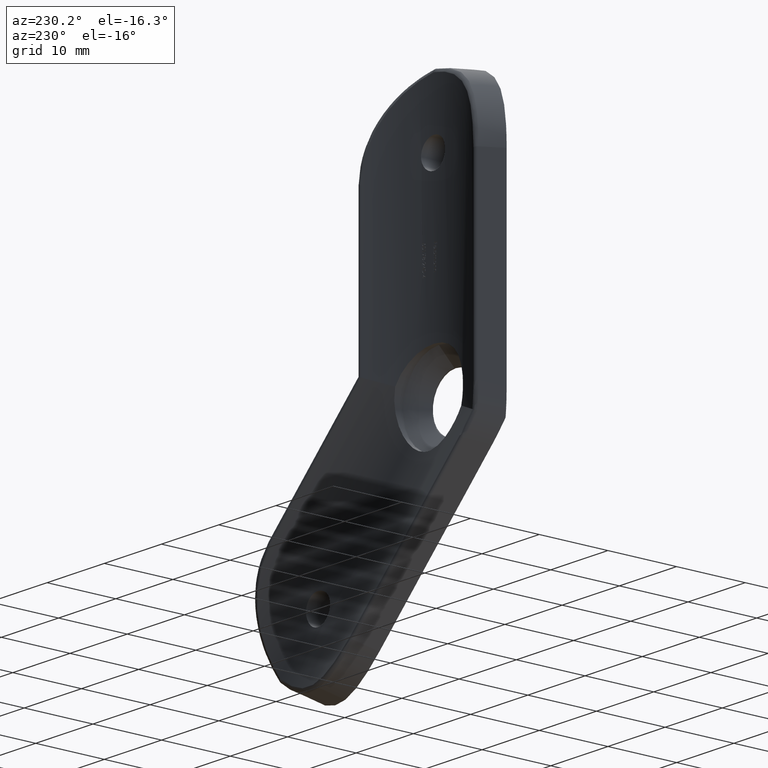
[diagram: clean part render]
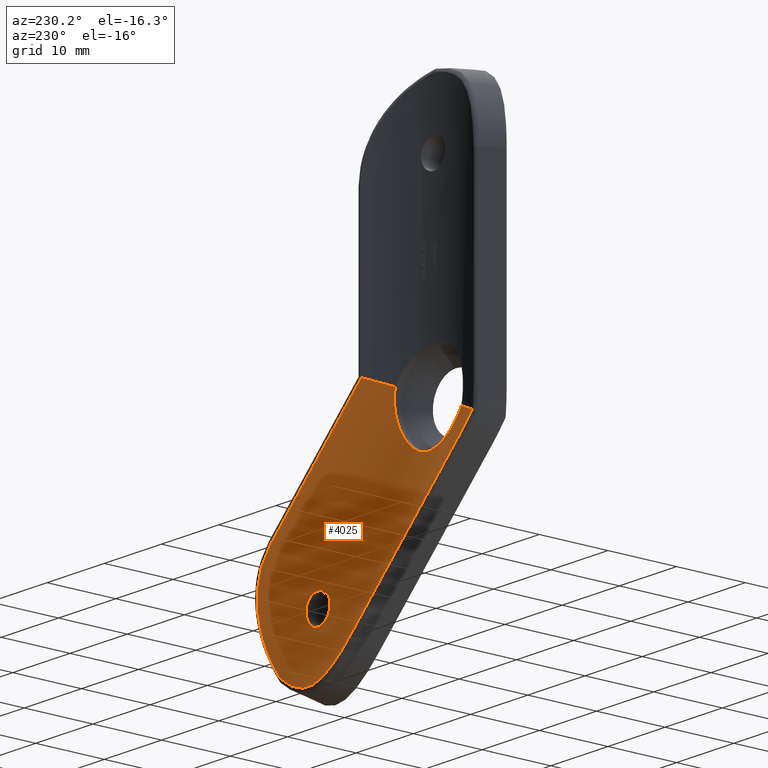
[diagram: same view with one face highlighted and labeled with its STEP entity id]
A machine part, auxiliary view. The second image highlights one B-rep face of the part: STEP entity #4025.
In plain terms, the highlighted cylindrical surface (partial cylindrical patch) has radius 21.2 mm, axis along (0.7071, 0, -0.7071).
Its self-contained STEP definition (entity closure, byte-faithful):
#9 = CARTESIAN_POINT ( 'NONE',  ( 28.56005800712260300, 3.960102950532994500, -23.79633715319551600 ) ) ;
#99 = CARTESIAN_POINT ( 'NONE',  ( 28.93126321833347000, 5.323748329729961700, -17.42108475749254000 ) ) ;
#119 = ORIENTED_EDGE ( 'NONE', *, *, #3359, .T. ) ;
#142 = CARTESIAN_POINT ( 'NONE',  ( 9.786144100064888100, 6.093847186285944200, 4.053553609584331400 ) ) ;
#240 = B_SPLINE_CURVE_WITH_KNOTS ( 'NONE', 3,
 ( #9014, #723, #9056, #10087, #5974, #5132 ),
 .UNSPECIFIED., .F., .F.,
 ( 4, 2, 4 ),
 ( 0.0000000000000000000, 0.001602261014506138100, 0.003204522029012276100 ),
 .UNSPECIFIED. ) ;
#297 = CARTESIAN_POINT ( 'NONE',  ( 25.64942639650512700, 3.742412928025725000, -27.60643563183157700 ) ) ;
#316 = CARTESIAN_POINT ( 'NONE',  ( -6.919848854824600400, 6.093847186285947800, -6.919848854824620900 ) ) ;
#402 = ORIENTED_EDGE ( 'NONE', *, *, #10122, .F. ) ;
#585 = B_SPLINE_CURVE_WITH_KNOTS ( 'NONE', 3,
 ( #1707, #8979, #2764, #1610, #10006, #3802, #11067, #12101, #3847, #6787, #7827, #1567, #3668, #4690 ),
 .UNSPECIFIED., .F., .F.,
 ( 4, 2, 2, 2, 2, 2, 4 ),
 ( 0.01923320216631467900, 0.02015400737586894500, 0.02107481258542321200, 0.02291642300453174100, 0.02475803342364027400, 0.02567883863319454400, 0.02659964384274881100 ),
 .UNSPECIFIED. ) ;
#607 = CARTESIAN_POINT ( 'NONE',  ( 2.482823787176574400, 3.824268621963951900, -5.741407187635871900 ) ) ;
#643 = CARTESIAN_POINT ( 'NONE',  ( -9.330593266185310600, 5.863718080963989700, -3.864858275841037000 ) ) ;
#650 = CARTESIAN_POINT ( 'NONE',  ( 6.045371583085263000, 3.932508588706170800, -1.606517223063910200 ) ) ;
#723 = CARTESIAN_POINT ( 'NONE',  ( -7.798240508542126500, 6.093847186285948700, -6.041457201107101000 ) ) ;
#757 = DIRECTION ( 'NONE',  ( -0.7071067811865465700, 0.0000000000000000000, -0.7071067811865485700 ) ) ;
#842 = CARTESIAN_POINT ( 'NONE',  ( 20.82921879040928600, 3.720052630462676600, -22.14529497371005500 ) ) ;
#879 = CARTESIAN_POINT ( 'NONE',  ( 6.919848854824595100, 6.093847186285940700, 6.919848854824615500 ) ) ;
#887 = CARTESIAN_POINT ( 'NONE',  ( 22.18538891344844500, 3.778334170644270800, -19.60814929815254700 ) ) ;
#1067 = ORIENTED_EDGE ( 'NONE', *, *, #2466, .F. ) ;
#1116 = CARTESIAN_POINT ( 'NONE',  ( 21.20584055181948800, 3.797693234256702200, -18.33064751069091300 ) ) ;
#1158 = CARTESIAN_POINT ( 'NONE',  ( 27.40718924533371100, 5.946516363973421100, -13.97484488292479000 ) ) ;
#1447 = CARTESIAN_POINT ( 'NONE',  ( 25.34752275472686400, 3.767695698261637200, -27.78824150044399500 ) ) ;
#1452 = EDGE_CURVE ( 'NONE', #11507, #10308, #240, .T. ) ;
#1567 = CARTESIAN_POINT ( 'NONE',  ( -5.519190112185397000, 4.563011017158346200, -2.948742050073892800 ) ) ;
#1610 = CARTESIAN_POINT ( 'NONE',  ( -1.209826619579936800, 4.345929449661221100, -6.139349569736468800 ) ) ;
#1619 = CARTESIAN_POINT ( 'NONE',  ( 5.705298535283363400, 3.815193503253131400, -2.564850002938132300 ) ) ;
#1680 = CARTESIAN_POINT ( 'NONE',  ( 12.84563120528007500, 6.064718140661850200, -26.60697257685469500 ) ) ;
#1707 = CARTESIAN_POINT ( 'NONE',  ( -3.320133720101775600E-017, 4.165758996288293000, -6.250000000000000000 ) ) ;
#1718 = CARTESIAN_POINT ( 'NONE',  ( 3.397537549141237600, 3.735693555433960500, -5.270885185374686100 ) ) ;
#1756 = CARTESIAN_POINT ( 'NONE',  ( 18.05264516550072400, 3.745112050597909600, -20.01243038443274700 ) ) ;
#1891 = CARTESIAN_POINT ( 'NONE',  ( 18.86262330225563100, 3.700019973075610500, -18.47289989652777800 ) ) ;
#1945 = CARTESIAN_POINT ( 'NONE',  ( 22.04059381752205800, 3.793765005836880400, -19.22291763320431100 ) ) ;
#2025 = VERTEX_POINT ( 'NONE', #5768 ) ;
#2076 = CARTESIAN_POINT ( 'NONE',  ( 28.39695391812695000, 5.658941227809774200, -15.80475560723312800 ) ) ;
#2086 = CARTESIAN_POINT ( 'NONE',  ( 20.42853285290282600, 3.765771062383713300, -18.06624150268636700 ) ) ;
#2220 = CARTESIAN_POINT ( 'NONE',  ( 29.12530589214574700, 4.333629174913363100, -21.80852082833983400 ) ) ;
#2293 = ORIENTED_EDGE ( 'NONE', *, *, #10522, .T. ) ;
#2322 = CARTESIAN_POINT ( 'NONE',  ( 26.23473295296525600, 3.708645272120688400, -27.21953555139468900 ) ) ;
#2332 = CARTESIAN_POINT ( 'NONE',  ( 19.59974415622175300, 3.779429613315272300, -22.19686083977653000 ) ) ;
#2347 = DIRECTION ( 'NONE',  ( -0.7071067811865486800, -0.0000000000000000000, 0.7071067811865464600 ) ) ;
#2457 = VERTEX_POINT ( 'NONE', #11906 ) ;
#2466 = EDGE_CURVE ( 'NONE', #4010, #10308, #7544, .T. ) ;
#2508 = CARTESIAN_POINT ( 'NONE',  ( 23.79633715319556900, 3.960102950533001200, -28.56005800712254900 ) ) ;
#2518 = B_SPLINE_CURVE_WITH_KNOTS ( 'NONE', 3,
 ( #4041, #10168, #2883, #4004, #842, #12298, #6011, #6099, #13320, #3013, #13231, #7254, #8294, #7165, #13368, #887, #8212, #1945, #9233, #10299, #11299, #12340, #10116, #1116, #9358, #11471, #3191, #2086, #13454, #4170 ),
 .UNSPECIFIED., .F., .F.,
 ( 4, 2, 2, 2, 2, 2, 2, 2, 2, 2, 2, 2, 2, 2, 4 ),
 ( 0.0000000000000000000, 0.0004106046416239344400, 0.0008212092832478688900, 0.001231813924871803300, 0.001642418566495737800, 0.002463627849743591400, 0.003284837132991445600, 0.003695441774615373000, 0.004106046416239299500, 0.004516651057863227200, 0.004927255699487153300, 0.005337860341111081000, 0.005748464982735008800, 0.006159069624358934900, 0.006569674265982861800 ),
 .UNSPECIFIED. ) ;
#2530 = FACE_BOUND ( 'NONE', #12296, .T. ) ;
#2545 = ORIENTED_EDGE ( 'NONE', *, *, #11720, .F. ) ;
#2686 = ORIENTED_EDGE ( 'NONE', *, *, #3009, .T. ) ;
#2764 = CARTESIAN_POINT ( 'NONE',  ( -0.6070558250666960900, 4.257406173640596600, -6.227903083231160200 ) ) ;
#2781 = ORIENTED_EDGE ( 'NONE', *, *, #9675, .T. ) ;
#2813 = CARTESIAN_POINT ( 'NONE',  ( 18.05244248518207700, 3.758872771179488900, -20.28958472417986400 ) ) ;
#2857 = CARTESIAN_POINT ( 'NONE',  ( 19.87875314222262800, 3.738474912112216900, -18.05254326381657700 ) ) ;
#2861 = CYLINDRICAL_SURFACE ( 'NONE', #5774, 21.19999999999999600 ) ;
#2883 = CARTESIAN_POINT ( 'NONE',  ( 20.42755834065472000, 3.738421452915348100, -22.23894554378794600 ) ) ;
#3009 = EDGE_CURVE ( 'NONE', #5762, #2457, #13475, .T. ) ;
#3013 = CARTESIAN_POINT ( 'NONE',  ( 21.83155098461809700, 3.700004388950497000, -21.44332136373001800 ) ) ;
#3078 = CARTESIAN_POINT ( 'NONE',  ( 18.32882338828915500, 3.797604841645915400, -21.20272382543468100 ) ) ;
#3180 = CARTESIAN_POINT ( 'NONE',  ( 9.786144100064888100, 6.093847186285944200, 4.053553609584331400 ) ) ;
#3191 = CARTESIAN_POINT ( 'NONE',  ( 20.69764839444391300, 3.778366072374148600, -18.11988842633364200 ) ) ;
#3272 = CARTESIAN_POINT ( 'NONE',  ( 27.78824150044404100, 3.767695698261633600, -25.34752275472681000 ) ) ;
#3316 = CARTESIAN_POINT ( 'NONE',  ( 26.60697257685472600, 6.064718140661840500, -12.84563120528000000 ) ) ;
#3359 = EDGE_CURVE ( 'NONE', #6708, #3972, #8875, .T. ) ;
#3457 = CARTESIAN_POINT ( 'NONE',  ( 22.48984038635504500, 4.193236368564750000, -28.97917726175555200 ) ) ;
#3510 = CARTESIAN_POINT ( 'NONE',  ( 16.44090758170112600, 5.533049251099974700, -28.64649260835938100 ) ) ;
#3643 = CARTESIAN_POINT ( 'NONE',  ( 13.97484488292485600, 5.946516363973422900, -27.40718924533367600 ) ) ;
#3668 = CARTESIAN_POINT ( 'NONE',  ( -5.656750937913602500, 4.534777845249577900, -2.675432227676965500 ) ) ;
#3725 = CARTESIAN_POINT ( 'NONE',  ( 6.156075917399219200, 4.001399044040920400, -1.109118778487298900 ) ) ;
#3769 = CARTESIAN_POINT ( 'NONE',  ( 6.270106034244882700, 4.151056355655950500, -0.09240454663818521700 ) ) ;
#3802 = CARTESIAN_POINT ( 'NONE',  ( -2.392131008894285800, 4.505857053435195600, -5.806511588401899200 ) ) ;
#3811 = CARTESIAN_POINT ( 'NONE',  ( 0.5103183289099986200, 4.088954651078225300, -6.234387250409535700 ) ) ;
#3847 = CARTESIAN_POINT ( 'NONE',  ( -4.434931044006025200, 4.651592231530765200, -4.447180220383389200 ) ) ;
#3851 = CARTESIAN_POINT ( 'NONE',  ( 18.57175178204541400, 3.699990097453770900, -18.76334488767037100 ) ) ;
#3972 = VERTEX_POINT ( 'NONE', #9938 ) ;
#4004 = CARTESIAN_POINT ( 'NONE',  ( 20.69586823253368400, 3.725882548044884500, -22.18564575624694500 ) ) ;
#4010 = VERTEX_POINT ( 'NONE', #4768 ) ;
#4025 = ADVANCED_FACE ( 'NONE', ( #2530, #5777 ), #2861, .F. ) ;
#4041 = CARTESIAN_POINT ( 'NONE',  ( 20.15254326381663200, 3.752068659086302800, -22.25254326381657300 ) ) ;
#4161 = CARTESIAN_POINT ( 'NONE',  ( 29.01116715867231800, 5.250569222153684400, -17.75216751643534300 ) ) ;
#4170 = CARTESIAN_POINT ( 'NONE',  ( 20.15254326381663200, 3.752068659086299300, -18.05254326381657000 ) ) ;
#4300 = CARTESIAN_POINT ( 'NONE',  ( 27.60643563183162300, 3.742412928025726300, -25.64942639650507100 ) ) ;
#4351 = CARTESIAN_POINT ( 'NONE',  ( -7.415700987168378300, 6.093847186285947800, -6.423996722480844700 ) ) ;
#4392 = CARTESIAN_POINT ( 'NONE',  ( 27.01381706062419100, 3.700000000000002000, -26.51939226882130600 ) ) ;
#4430 = B_SPLINE_CURVE_WITH_KNOTS ( 'NONE', 3,
 ( #8138, #2857, #6075, #7144, #1891, #3851, #9030, #9208, #5947, #13119, #6974, #8013, #1756, #2813, #10054, #7369, #13345, #9248, #3078, #11319, #8271, #12448, #5421, #2332, #9512, #7547 ),
 .UNSPECIFIED., .F., .F.,
 ( 4, 2, 2, 2, 2, 2, 2, 2, 2, 2, 2, 2, 4 ),
 ( 0.006569674265982861800, 0.007390698931764796600, 0.008211723597546731500, 0.008622235930437703200, 0.009032748263328673300, 0.009443260596219645000, 0.009853772929110615100, 0.01026428526200158700, 0.01067479759489255900, 0.01108530992778352900, 0.01149582226067450000, 0.01231684692645643500, 0.01313787159223837000 ),
 .UNSPECIFIED. ) ;
#4502 = CARTESIAN_POINT ( 'NONE',  ( 19.78139695168332000, 4.786700003243243600, -29.27974202725681600 ) ) ;
#4518 = CARTESIAN_POINT ( 'NONE',  ( -5.774247078195539700, 4.501517931964879300, -2.391771452281815900 ) ) ;
#4686 = VERTEX_POINT ( 'NONE', #10468 ) ;
#4690 = CARTESIAN_POINT ( 'NONE',  ( -5.774247078195539700, 4.501517931964879300, -2.391771452281815900 ) ) ;
#4700 = CARTESIAN_POINT ( 'NONE',  ( 5.954673912655244400, 4.443052676257791800, 1.915544457808936000 ) ) ;
#4751 = CARTESIAN_POINT ( 'NONE',  ( 6.144435087098238500, 4.340355253299280000, 1.172057826784755200 ) ) ;
#4768 = CARTESIAN_POINT ( 'NONE',  ( -5.774247078195539700, 4.501517931964879300, -2.391771452281815900 ) ) ;
#4799 = VECTOR ( 'NONE', #9266, 999.9999999999998900 ) ;
#4801 = CARTESIAN_POINT ( 'NONE',  ( 5.474825702898608700, 3.769422852588393700, -3.025751218649508800 ) ) ;
#4842 = CARTESIAN_POINT ( 'NONE',  ( 1.018371170913328300, 4.014520491804808500, -6.171784939800078400 ) ) ;
#5132 = CARTESIAN_POINT ( 'NONE',  ( -9.330593266185310600, 5.863718080963989700, -3.864858275841037000 ) ) ;
#5209 = CARTESIAN_POINT ( 'NONE',  ( 27.21569891194941700, 5.981063973388752500, -13.68664611108440400 ) ) ;
#5211 = CARTESIAN_POINT ( 'NONE',  ( 8.505390113719389700, 5.427382163308482900, 3.523047938376619100 ) ) ;
#5279 = EDGE_CURVE ( 'NONE', #3972, #5762, #9176, .T. ) ;
#5410 = CARTESIAN_POINT ( 'NONE',  ( 14.87371885747914900, 5.817188387548920800, -27.93521332940205700 ) ) ;
#5421 = CARTESIAN_POINT ( 'NONE',  ( 19.09451043229696400, 3.798634407053572500, -21.98704257757032800 ) ) ;
#5502 = CARTESIAN_POINT ( 'NONE',  ( 26.79660854306900900, 3.700000000000001500, -26.79660854306896000 ) ) ;
#5662 = CARTESIAN_POINT ( 'NONE',  ( -6.998988146072686200, 4.848208313589779600, -2.899075812991837300 ) ) ;
#5762 = VERTEX_POINT ( 'NONE', #9718 ) ;
#5768 = CARTESIAN_POINT ( 'NONE',  ( 20.15254326381663200, 3.752068659086299300, -18.05254326381657000 ) ) ;
#5770 = CARTESIAN_POINT ( 'NONE',  ( -3.320133720101775600E-017, 4.165758996288293000, -6.250000000000000000 ) ) ;
#5774 = AXIS2_PLACEMENT_3D ( 'NONE', #10076, #12255, #757 ) ;
#5777 = FACE_OUTER_BOUND ( 'NONE', #8540, .T. ) ;
#5829 = CARTESIAN_POINT ( 'NONE',  ( 11.81848084661893800, 6.093847186285946900, -25.65817855626809800 ) ) ;
#5857 = CARTESIAN_POINT ( 'NONE',  ( 2.004461630483293200, 3.880752216444840500, -5.925394841217499000 ) ) ;
#5894 = EDGE_CURVE ( 'NONE', #4686, #2025, #2518, .T. ) ;
#5947 = CARTESIAN_POINT ( 'NONE',  ( 18.26575371852437300, 3.710366985085843600, -19.22036633062516800 ) ) ;
#5974 = CARTESIAN_POINT ( 'NONE',  ( -9.076064930258411300, 5.938938609568307200, -4.336418849588700800 ) ) ;
#6011 = CARTESIAN_POINT ( 'NONE',  ( 21.20422038931050300, 3.706586524813216200, -21.97540569788781200 ) ) ;
#6075 = CARTESIAN_POINT ( 'NONE',  ( 19.60261208805762600, 3.724869243927019500, -18.10745988724519200 ) ) ;
#6099 = CARTESIAN_POINT ( 'NONE',  ( 21.43261932516268000, 3.701368930101511800, -21.82294965359241000 ) ) ;
#6319 = CARTESIAN_POINT ( 'NONE',  ( 29.27402783860533100, 4.629980862487283100, -20.45704366998964800 ) ) ;
#6369 = CARTESIAN_POINT ( 'NONE',  ( 27.93521332940209900, 5.817188387548912800, -14.87371885747907800 ) ) ;
#6669 = CARTESIAN_POINT ( 'NONE',  ( 17.75216751643540600, 5.250569222153695000, -29.01116715867228300 ) ) ;
#6708 = VERTEX_POINT ( 'NONE', #142 ) ;
#6780 = CARTESIAN_POINT ( 'NONE',  ( -9.330593266185310600, 5.863718080963989700, -3.864858275841037000 ) ) ;
#6787 = CARTESIAN_POINT ( 'NONE',  ( -5.024811652566644900, 4.623870105303074900, -3.729564207202350700 ) ) ;
#6932 = CARTESIAN_POINT ( 'NONE',  ( 5.805109357712643400, 3.841639294939035700, -2.329771153627987300 ) ) ;
#6974 = CARTESIAN_POINT ( 'NONE',  ( 18.11980265737209500, 3.725822092220872700, -19.60786756963273800 ) ) ;
#6978 = CARTESIAN_POINT ( 'NONE',  ( 2.719060928480462500, 3.798956858048546400, -5.633378708734015000 ) ) ;
#7135 = VERTEX_POINT ( 'NONE', #10079 ) ;
#7144 = CARTESIAN_POINT ( 'NONE',  ( 19.09718359576763500, 3.705680490321461300, -18.31651322967882600 ) ) ;
#7165 = CARTESIAN_POINT ( 'NONE',  ( 22.25259057514865900, 3.758830589302347500, -20.01635173362442200 ) ) ;
#7254 = CARTESIAN_POINT ( 'NONE',  ( 22.19742063550920000, 3.724831099190405700, -20.70329721677363800 ) ) ;
#7290 = ORIENTED_EDGE ( 'NONE', *, *, #1452, .T. ) ;
#7346 = ORIENTED_EDGE ( 'NONE', *, *, #5279, .T. ) ;
#7365 = VECTOR ( 'NONE', #2347, 999.9999999999998900 ) ;
#7369 = CARTESIAN_POINT ( 'NONE',  ( 18.11902673873802500, 3.778215102916805600, -20.69430539677812700 ) ) ;
#7434 = CARTESIAN_POINT ( 'NONE',  ( 29.13935104613540300, 5.099175047004874500, -18.42394181025777300 ) ) ;
#7435 = CARTESIAN_POINT ( 'NONE',  ( 5.774247078195540600, 4.501517931964884600, 2.391771452281815000 ) ) ;
#7544 =( BOUNDED_CURVE ( )  B_SPLINE_CURVE ( 3, ( #4518, #5662, #12763, #6780 ),
 .UNSPECIFIED., .F., .F. ) 
 B_SPLINE_CURVE_WITH_KNOTS ( ( 4, 4 ),
 ( 1.846651777901944500, 2.026531223200644500 ),
 .UNSPECIFIED. ) 
 CURVE ( )  GEOMETRIC_REPRESENTATION_ITEM ( )  RATIONAL_B_SPLINE_CURVE ( ( 1.000000000000000000, 0.9973054325623265100, 0.9973054325623265100, 1.000000000000000000 ) ) 
 REPRESENTATION_ITEM ( '' )  );
#7547 = CARTESIAN_POINT ( 'NONE',  ( 20.15254326381663200, 3.752068659086302800, -22.25254326381657300 ) ) ;
#7679 = CARTESIAN_POINT ( 'NONE',  ( 18.42394181025783700, 5.099175047004882400, -29.13935104613534200 ) ) ;
#7702 = CARTESIAN_POINT ( 'NONE',  ( 26.79660854306900900, 3.700000000000001500, -26.79660854306896000 ) ) ;
#7827 = CARTESIAN_POINT ( 'NONE',  ( -5.204013266852062900, 4.607526723700800600, -3.474879147646255300 ) ) ;
#7852 = CARTESIAN_POINT ( 'NONE',  ( 12.31613601523349100, 6.093847186285947800, -26.15583372488265800 ) ) ;
#7935 = CARTESIAN_POINT ( 'NONE',  ( 4.919090032562177600, 3.706537431620476200, -3.889390762940594400 ) ) ;
#7948 = CARTESIAN_POINT ( 'NONE',  ( 13.68664611108447300, 5.981063973388761400, -27.21569891194937400 ) ) ;
#7980 = CARTESIAN_POINT ( 'NONE',  ( 1.268557310163390200, 3.978833795342724000, -6.125180003519044000 ) ) ;
#8013 = CARTESIAN_POINT ( 'NONE',  ( 18.06632631303794100, 3.738353426688763500, -19.87612904709323700 ) ) ;
#8138 = CARTESIAN_POINT ( 'NONE',  ( 20.15254326381663200, 3.752068659086299300, -18.05254326381657000 ) ) ;
#8203 =( BOUNDED_CURVE ( )  B_SPLINE_CURVE ( 3, ( #3180, #5211, #12421, #7435 ),
 .UNSPECIFIED., .F., .T. ) 
 B_SPLINE_CURVE_WITH_KNOTS ( ( 4, 4 ),
 ( 1.090986402790381300, 1.294940875687848900 ),
 .UNSPECIFIED. ) 
 CURVE ( )  GEOMETRIC_REPRESENTATION_ITEM ( )  RATIONAL_B_SPLINE_CURVE ( ( 1.000000000000000000, 0.9965365507804080400, 0.9965365507804080400, 1.000000000000000000 ) ) 
 REPRESENTATION_ITEM ( '' )  );
#8212 = CARTESIAN_POINT ( 'NONE',  ( 22.14576685749257100, 3.784073340865184300, -19.47726671894611500 ) ) ;
#8271 = CARTESIAN_POINT ( 'NONE',  ( 18.56967133770175900, 3.804255810667182700, -21.53937742024796600 ) ) ;
#8294 = CARTESIAN_POINT ( 'NONE',  ( 22.25244826303781300, 3.738436426402393500, -20.42710903947278600 ) ) ;
#8375 = CARTESIAN_POINT ( 'NONE',  ( 27.76657298165500600, 5.864721401289212800, -14.56758452452240800 ) ) ;
#8421 = CARTESIAN_POINT ( 'NONE',  ( -3.320133720101775600E-017, 4.165758996288293000, -6.250000000000000000 ) ) ;
#8540 = EDGE_LOOP ( 'NONE', ( #2545, #11854, #119, #7346, #2686, #2781, #7290, #1067, #402 ) ) ;
#8611 = CARTESIAN_POINT ( 'NONE',  ( 26.51939226882136700, 3.700000000000002400, -27.01381706062414900 ) ) ;
#8702 = CARTESIAN_POINT ( 'NONE',  ( 17.42108475749261100, 5.323748329729967000, -28.93126321833343100 ) ) ;
#8875 = LINE ( 'NONE', #879, #4799 ) ;
#8911 = CARTESIAN_POINT ( 'NONE',  ( 14.56758452452247700, 5.864721401289218200, -27.76657298165497400 ) ) ;
#8947 = CARTESIAN_POINT ( 'NONE',  ( 5.344760739783071200, 3.750320317088222700, -3.249862989157938500 ) ) ;
#8979 = CARTESIAN_POINT ( 'NONE',  ( -0.3043110311424959700, 4.211623803789569500, -6.250000000000000900 ) ) ;
#8987 = CARTESIAN_POINT ( 'NONE',  ( 4.584675015992953500, 3.694765469443826800, -4.279302254579907800 ) ) ;
#9014 = CARTESIAN_POINT ( 'NONE',  ( -7.415700987168378300, 6.093847186285947800, -6.423996722480844700 ) ) ;
#9030 = CARTESIAN_POINT ( 'NONE',  ( 18.48295923666588100, 3.701351140636918400, -18.87139060219558600 ) ) ;
#9056 = CARTESIAN_POINT ( 'NONE',  ( -8.148861451529477100, 6.073834569678463200, -5.636834015667243000 ) ) ;
#9176 = B_SPLINE_CURVE_WITH_KNOTS ( 'NONE', 3,
 ( #12554, #11505, #3316, #5209, #1158, #8375, #6369, #2076, #11603, #99, #4161, #7434, #11419, #12508, #6319, #2220, #12460, #9, #9480, #3272, #4300, #11552, #4392, #7702 ),
 .UNSPECIFIED., .F., .F.,
 ( 4, 2, 2, 2, 2, 2, 2, 2, 2, 2, 2, 4 ),
 ( 0.0000000000000000000, 0.002082930985801102000, 0.003124396478701651000, 0.004165861971602199600, 0.006248792957403297700, 0.007290258450303844500, 0.008331723943204392300, 0.01041465492900547700, 0.01249758591480656200, 0.01458051690060764700, 0.01562198239350819300, 0.01666344788640873600 ),
 .UNSPECIFIED. ) ;
#9208 = CARTESIAN_POINT ( 'NONE',  ( 18.33031697945272500, 3.706554497246089300, -19.09975917642316600 ) ) ;
#9233 = CARTESIAN_POINT ( 'NONE',  ( 21.97484091978474300, 3.797673161632366200, -19.09994157911687300 ) ) ;
#9248 = CARTESIAN_POINT ( 'NONE',  ( 18.26442630873844700, 3.793760839691573800, -21.08204121979013800 ) ) ;
#9266 = DIRECTION ( 'NONE',  ( 0.7071067811865486800, 0.0000000000000000000, -0.7071067811865464600 ) ) ;
#9358 = CARTESIAN_POINT ( 'NONE',  ( 21.08297144247087800, 3.793792561663664300, -18.26488343384630800 ) ) ;
#9480 = CARTESIAN_POINT ( 'NONE',  ( 28.28738613776773600, 3.865626462780730400, -24.42824470651644800 ) ) ;
#9512 = CARTESIAN_POINT ( 'NONE',  ( 19.87528198609686900, 3.765834749817003500, -22.25254326381656300 ) ) ;
#9674 = CARTESIAN_POINT ( 'NONE',  ( 24.42824470651649800, 3.865626462780733500, -28.28738613776767600 ) ) ;
#9675 = EDGE_CURVE ( 'NONE', #2457, #11507, #12040, .T. ) ;
#9713 = CARTESIAN_POINT ( 'NONE',  ( 20.45704366998970500, 4.629980862487290200, -29.27402783860527800 ) ) ;
#9718 = CARTESIAN_POINT ( 'NONE',  ( 26.79660854306900900, 3.700000000000001500, -26.79660854306896000 ) ) ;
#9745 = CARTESIAN_POINT ( 'NONE',  ( 5.774247078195540600, 4.501517931964884600, 2.391771452281815000 ) ) ;
#9938 = CARTESIAN_POINT ( 'NONE',  ( 25.65817855626813300, 6.093847186285943400, -11.81848084661886700 ) ) ;
#10006 = CARTESIAN_POINT ( 'NONE',  ( -1.512307550493534800, 4.388989021536271900, -6.072006898070028100 ) ) ;
#10016 = CARTESIAN_POINT ( 'NONE',  ( 5.975147621984112900, 3.900294815662689100, -1.850605084500097000 ) ) ;
#10054 = CARTESIAN_POINT ( 'NONE',  ( 18.06594464191428900, 3.765648903677319700, -20.42604254636424700 ) ) ;
#10076 = CARTESIAN_POINT ( 'NONE',  ( 0.0000000000000000000, 24.89999999999999900, 0.0000000000000000000 ) ) ;
#10079 = CARTESIAN_POINT ( 'NONE',  ( 5.774247078195540600, 4.501517931964884600, 2.391771452281815000 ) ) ;
#10087 = CARTESIAN_POINT ( 'NONE',  ( -8.787759147430884700, 5.996382399183642200, -4.784303788547857600 ) ) ;
#10116 = CARTESIAN_POINT ( 'NONE',  ( 21.43344782235444900, 3.802901277526106000, -18.48280591198888700 ) ) ;
#10122 = EDGE_CURVE ( 'NONE', #12866, #4010, #585, .T. ) ;
#10168 = CARTESIAN_POINT ( 'NONE',  ( 20.29120507547595100, 3.745184065983777200, -22.25254326381657300 ) ) ;
#10299 = CARTESIAN_POINT ( 'NONE',  ( 21.82277056825748900, 3.802890786997733800, -18.87227774249696200 ) ) ;
#10308 = VERTEX_POINT ( 'NONE', #643 ) ;
#10468 = CARTESIAN_POINT ( 'NONE',  ( 20.15254326381663200, 3.752068659086302800, -22.25254326381657300 ) ) ;
#10522 = EDGE_CURVE ( 'NONE', #2025, #4686, #4430, .T. ) ;
#10720 = CARTESIAN_POINT ( 'NONE',  ( 21.80852082833989400, 4.333629174913368400, -29.12530589214568600 ) ) ;
#10805 = CARTESIAN_POINT ( 'NONE',  ( 5.871853712125399300, 4.473888188785848800, 2.156128192870767600 ) ) ;
#10941 = CARTESIAN_POINT ( 'NONE',  ( 6.090865578619683700, 4.376415127786507300, 1.424362481633576300 ) ) ;
#10991 = CARTESIAN_POINT ( 'NONE',  ( 1.761602820433362900, 3.911951803633565200, -6.001984940644201000 ) ) ;
#11035 = CARTESIAN_POINT ( 'NONE',  ( 6.196616378202611100, 4.038336478902990300, -0.8541150576002832800 ) ) ;
#11067 = CARTESIAN_POINT ( 'NONE',  ( -2.945966581923139300, 4.567985646449163700, -5.547030855168890700 ) ) ;
#11094 = B_SPLINE_CURVE_WITH_KNOTS ( 'NONE', 3,
 ( #9745, #10805, #4700, #10941, #4751, #12058, #3769, #11035, #3725, #650, #10016, #6932, #1619, #4801, #8947, #7935, #8987, #13123, #1718, #6978, #607, #5857, #10991, #7980, #4842, #3811, #11971, #5770 ),
 .UNSPECIFIED., .F., .F.,
 ( 4, 2, 2, 2, 2, 2, 2, 2, 2, 2, 2, 2, 2, 4 ),
 ( 0.006942556006334406900, 0.007710721391333172700, 0.008478886776331939400, 0.01001521754632947100, 0.01078338293132823800, 0.01155154831632700500, 0.01231971370132577100, 0.01308787908632453800, 0.01462420985632207100, 0.01616054062631960800, 0.01692870601131837500, 0.01769687139631714200, 0.01846503678131590800, 0.01923320216631467900 ),
 .UNSPECIFIED. ) ;
#11134 = ORIENTED_EDGE ( 'NONE', *, *, #5894, .T. ) ;
#11299 = CARTESIAN_POINT ( 'NONE',  ( 21.73592501148470600, 3.804262606688170000, -18.76612238050639900 ) ) ;
#11319 = CARTESIAN_POINT ( 'NONE',  ( 18.48100868337457900, 3.802865109581349500, -21.43113840802011800 ) ) ;
#11419 = CARTESIAN_POINT ( 'NONE',  ( 29.18744360116729900, 5.020855561925740700, -18.76504987449396100 ) ) ;
#11471 = CARTESIAN_POINT ( 'NONE',  ( 20.82854618927232700, 3.784104024902813700, -18.15956150923562300 ) ) ;
#11505 = CARTESIAN_POINT ( 'NONE',  ( 26.15583372488269000, 6.093847186285944200, -12.31613601523342000 ) ) ;
#11507 = VERTEX_POINT ( 'NONE', #4351 ) ;
#11552 = CARTESIAN_POINT ( 'NONE',  ( 27.21953555139474500, 3.708645272120690600, -26.23473295296521400 ) ) ;
#11603 = CARTESIAN_POINT ( 'NONE',  ( 28.64649260835943100, 5.533049251099970300, -16.44090758170106200 ) ) ;
#11624 = CARTESIAN_POINT ( 'NONE',  ( 15.80475560723319700, 5.658941227809782100, -28.39695391812690400 ) ) ;
#11720 = EDGE_CURVE ( 'NONE', #7135, #12866, #11094, .T. ) ;
#11854 = ORIENTED_EDGE ( 'NONE', *, *, #12851, .F. ) ;
#11906 = CARTESIAN_POINT ( 'NONE',  ( 11.81848084661893800, 6.093847186285946900, -25.65817855626809800 ) ) ;
#11971 = CARTESIAN_POINT ( 'NONE',  ( 0.2538660706645026700, 4.127497095566460500, -6.250000000000003600 ) ) ;
#12040 = LINE ( 'NONE', #316, #7365 ) ;
#12058 = CARTESIAN_POINT ( 'NONE',  ( 6.257196220557425200, 4.229072954717833200, 0.4137678250024579600 ) ) ;
#12101 = CARTESIAN_POINT ( 'NONE',  ( -3.980057992307821200, 4.641814347020620300, -4.858745598183780600 ) ) ;
#12255 = DIRECTION ( 'NONE',  ( 0.7071067811865485700, 0.0000000000000000000, -0.7071067811865464600 ) ) ;
#12296 = EDGE_LOOP ( 'NONE', ( #11134, #2293 ) ) ;
#12298 = CARTESIAN_POINT ( 'NONE',  ( 21.08356220367336300, 3.710405894326202600, -22.03990991584815300 ) ) ;
#12340 = CARTESIAN_POINT ( 'NONE',  ( 21.53970247723747300, 3.804269050064038800, -18.56980830775203400 ) ) ;
#12421 = CARTESIAN_POINT ( 'NONE',  ( 7.163443341930118900, 4.894761038984083400, 2.967195385518709600 ) ) ;
#12448 = CARTESIAN_POINT ( 'NONE',  ( 18.86026171132128900, 3.804285713550464200, -21.83039261247390100 ) ) ;
#12460 = CARTESIAN_POINT ( 'NONE',  ( 28.97917726175560600, 4.193236368564742000, -22.48984038635498800 ) ) ;
#12508 = CARTESIAN_POINT ( 'NONE',  ( 29.27974202725687300, 4.786700003243235600, -19.78139695168325200 ) ) ;
#12554 = CARTESIAN_POINT ( 'NONE',  ( 25.65817855626813300, 6.093847186285943400, -11.81848084661886700 ) ) ;
#12763 = CARTESIAN_POINT ( 'NONE',  ( -8.187639777383072500, 5.303501849058069900, -3.391431439617505400 ) ) ;
#12793 = CARTESIAN_POINT ( 'NONE',  ( 18.76504987449402900, 5.020855561925747800, -29.18744360116724200 ) ) ;
#12851 = EDGE_CURVE ( 'NONE', #6708, #7135, #8203, .T. ) ;
#12866 = VERTEX_POINT ( 'NONE', #8421 ) ;
#13119 = CARTESIAN_POINT ( 'NONE',  ( 18.16026049649792300, 3.719995923877551700, -19.47450344342012900 ) ) ;
#13123 = CARTESIAN_POINT ( 'NONE',  ( 3.816327017095845400, 3.709544815910007300, -4.976677695702930400 ) ) ;
#13231 = CARTESIAN_POINT ( 'NONE',  ( 21.98804941401904500, 3.705651706654577100, -21.20884367304081100 ) ) ;
#13320 = CARTESIAN_POINT ( 'NONE',  ( 21.54078545751015400, 3.699997809593940500, -21.73418082314576000 ) ) ;
#13345 = CARTESIAN_POINT ( 'NONE',  ( 18.15923938293253000, 3.784063986975724400, -20.82759268768500100 ) ) ;
#13368 = CARTESIAN_POINT ( 'NONE',  ( 22.23894256861627000, 3.765735195521231900, -19.87729035100728200 ) ) ;
#13454 = CARTESIAN_POINT ( 'NONE',  ( 20.28946910714707000, 3.758867060933711800, -18.05254326381657000 ) ) ;
#13475 = B_SPLINE_CURVE_WITH_KNOTS ( 'NONE', 3,
 ( #5502, #8611, #2322, #297, #1447, #9674, #2508, #3457, #10720, #9713, #4502, #12793, #7679, #6669, #8702, #3510, #11624, #5410, #8911, #3643, #7948, #1680, #7852, #5829 ),
 .UNSPECIFIED., .F., .F.,
 ( 4, 2, 2, 2, 2, 2, 2, 2, 2, 2, 2, 4 ),
 ( 0.0000000000000000000, 0.001053485587485946400, 0.002106971174971892900, 0.004213942349943785800, 0.006320913524915679600, 0.008427884699887571600, 0.009481370287373525400, 0.01053485587485947600, 0.01264182704983138700, 0.01369531263731733700, 0.01474879822480328900, 0.01685576939977518500 ),
 .UNSPECIFIED. ) ;